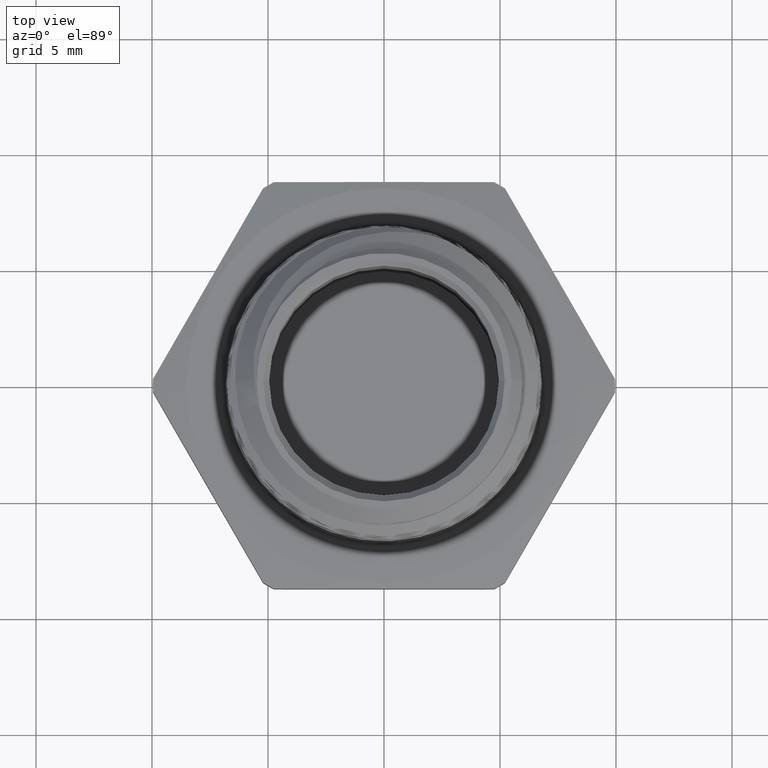
[diagram: clean part render]
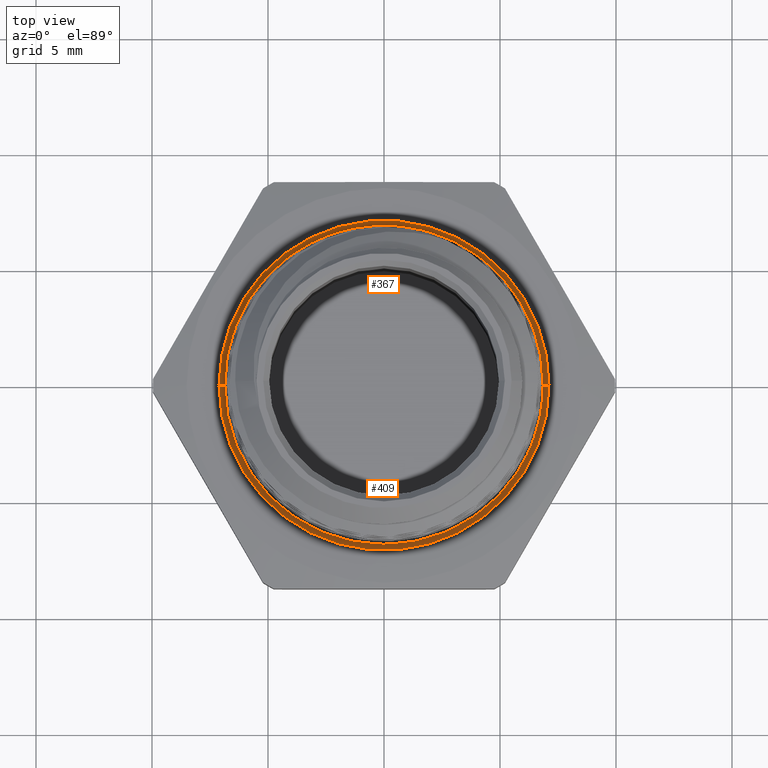
[diagram: same view with one multi-face feature highlighted, each face labeled with its STEP entity id]
A machine part, top view. The highlighted faces form ONE feature: a constant-radius fillet chain: 2 tangent blend faces with common blend radius 0.254 mm. The faces share edges in the B-rep.
Their STEP definitions:
[1] entity #367 (Torus):
#367 = ADVANCED_FACE ( 'NONE', ( #1007 ), #1006, .F. ) ;
#486 = EDGE_CURVE ( 'NONE', #879, #878, #1106, .T. ) ;
#546 = EDGE_CURVE ( 'NONE', #873, #879, #1185, .T. ) ;
#548 = EDGE_CURVE ( 'NONE', #876, #878, #1187, .T. ) ;
#596 = EDGE_CURVE ( 'NONE', #876, #873, #1229, .T. ) ;
#622 = AXIS2_PLACEMENT_3D ( 'NONE', #5113, #5111, #5115 ) ;
#680 = AXIS2_PLACEMENT_3D ( 'NONE', #3029, #3030, #3031 ) ;
#706 = AXIS2_PLACEMENT_3D ( 'NONE', #3727, #3728, #3729 ) ;
#718 = EDGE_LOOP ( 'NONE', ( #4720, #4718, #4725, #4728 ) ) ;
#873 = VERTEX_POINT ( 'NONE', #4147 ) ;
#876 = VERTEX_POINT ( 'NONE', #4150 ) ;
#878 = VERTEX_POINT ( 'NONE', #4152 ) ;
#879 = VERTEX_POINT ( 'NONE', #4153 ) ;
#1006 = TOROIDAL_SURFACE ( 'NONE', #622, 0.2800000000000000300, 0.01000000000000000000 ) ;
#1007 = FACE_OUTER_BOUND ( 'NONE', #718, .T. ) ;
#1106 = CIRCLE ( 'NONE', #680, 0.2800000000000000300 ) ;
#1185 = CIRCLE ( 'NONE', #706, 0.009999999999999995000 ) ;
#1187 = CIRCLE ( 'NONE', #3862, 0.009999999999999995000 ) ;
#1229 = CIRCLE ( 'NONE', #3883, 0.2700000000000000200 ) ;
#3029 = CARTESIAN_POINT ( 'NONE',  ( 0.0000000000000000000, 0.0000000000000000000, 0.1100000000000000000 ) ) ;
#3030 = DIRECTION ( 'NONE',  ( 0.0000000000000000000, -0.0000000000000000000, -1.000000000000000000 ) ) ;
#3031 = DIRECTION ( 'NONE',  ( 1.000000000000000000, 0.0000000000000000000, 0.0000000000000000000 ) ) ;
#3727 = CARTESIAN_POINT ( 'NONE',  ( -0.2800000000000000300, 3.429011037612588800E-017, 0.1200000000000000200 ) ) ;
#3728 = DIRECTION ( 'NONE',  ( 1.224646799147353200E-016, 1.000000000000000000, 0.0000000000000000000 ) ) ;
#3729 = DIRECTION ( 'NONE',  ( -1.000000000000000000, 1.224646799147351000E-016, 0.0000000000000000000 ) ) ;
#3733 = CARTESIAN_POINT ( 'NONE',  ( 0.2800000000000000300, 0.0000000000000000000, 0.1200000000000000200 ) ) ;
#3734 = DIRECTION ( 'NONE',  ( 0.0000000000000000000, -1.000000000000000000, 0.0000000000000000000 ) ) ;
#3735 = DIRECTION ( 'NONE',  ( 0.0000000000000000000, 0.0000000000000000000, -1.000000000000000000 ) ) ;
#3862 = AXIS2_PLACEMENT_3D ( 'NONE', #3733, #3734, #3735 ) ;
#3883 = AXIS2_PLACEMENT_3D ( 'NONE', #4092, #4093, #4094 ) ;
#4092 = CARTESIAN_POINT ( 'NONE',  ( 0.0000000000000000000, 0.0000000000000000000, 0.1200000000000000200 ) ) ;
#4093 = DIRECTION ( 'NONE',  ( -0.0000000000000000000, 0.0000000000000000000, 1.000000000000000000 ) ) ;
#4094 = DIRECTION ( 'NONE',  ( 1.000000000000000000, 0.0000000000000000000, 0.0000000000000000000 ) ) ;
#4147 = CARTESIAN_POINT ( 'NONE',  ( -0.2700000000000000200, 0.0000000000000000000, 0.1200000000000000200 ) ) ;
#4150 = CARTESIAN_POINT ( 'NONE',  ( 0.2700000000000000200, 3.306546357697853700E-017, 0.1200000000000000200 ) ) ;
#4152 = CARTESIAN_POINT ( 'NONE',  ( 0.2800000000000000300, 0.0000000000000000000, 0.1100000000000000300 ) ) ;
#4153 = CARTESIAN_POINT ( 'NONE',  ( -0.2800000000000000300, 3.429011037612588800E-017, 0.1100000000000000300 ) ) ;
#4718 = ORIENTED_EDGE ( 'NONE', *, *, #596, .F. ) ;
#4720 = ORIENTED_EDGE ( 'NONE', *, *, #546, .F. ) ;
#4725 = ORIENTED_EDGE ( 'NONE', *, *, #548, .T. ) ;
#4728 = ORIENTED_EDGE ( 'NONE', *, *, #486, .F. ) ;
#5111 = DIRECTION ( 'NONE',  ( -0.0000000000000000000, 0.0000000000000000000, 1.000000000000000000 ) ) ;
#5113 = CARTESIAN_POINT ( 'NONE',  ( 0.0000000000000000000, 0.0000000000000000000, 0.1200000000000000200 ) ) ;
#5115 = DIRECTION ( 'NONE',  ( 1.000000000000000000, 0.0000000000000000000, 0.0000000000000000000 ) ) ;
[2] entity #409 (Torus):
#37 = EDGE_LOOP ( 'NONE', ( #752, #736, #753, #754 ) ) ;
#409 = ADVANCED_FACE ( 'NONE', ( #1092 ), #1095, .F. ) ;
#545 = EDGE_CURVE ( 'NONE', #873, #876, #1182, .T. ) ;
#546 = EDGE_CURVE ( 'NONE', #873, #879, #1185, .T. ) ;
#547 = EDGE_CURVE ( 'NONE', #878, #879, #1183, .T. ) ;
#548 = EDGE_CURVE ( 'NONE', #876, #878, #1187, .T. ) ;
#674 = AXIS2_PLACEMENT_3D ( 'NONE', #2739, #2738, #2741 ) ;
#705 = AXIS2_PLACEMENT_3D ( 'NONE', #3724, #3725, #3726 ) ;
#706 = AXIS2_PLACEMENT_3D ( 'NONE', #3727, #3728, #3729 ) ;
#736 = ORIENTED_EDGE ( 'NONE', *, *, #546, .T. ) ;
#752 = ORIENTED_EDGE ( 'NONE', *, *, #545, .F. ) ;
#753 = ORIENTED_EDGE ( 'NONE', *, *, #547, .F. ) ;
#754 = ORIENTED_EDGE ( 'NONE', *, *, #548, .F. ) ;
#873 = VERTEX_POINT ( 'NONE', #4147 ) ;
#876 = VERTEX_POINT ( 'NONE', #4150 ) ;
#878 = VERTEX_POINT ( 'NONE', #4152 ) ;
#879 = VERTEX_POINT ( 'NONE', #4153 ) ;
#1092 = FACE_OUTER_BOUND ( 'NONE', #37, .T. ) ;
#1095 = TOROIDAL_SURFACE ( 'NONE', #674, 0.2800000000000000300, 0.01000000000000000000 ) ;
#1182 = CIRCLE ( 'NONE', #705, 0.2700000000000000200 ) ;
#1183 = CIRCLE ( 'NONE', #3861, 0.2800000000000000300 ) ;
#1185 = CIRCLE ( 'NONE', #706, 0.009999999999999995000 ) ;
#1187 = CIRCLE ( 'NONE', #3862, 0.009999999999999995000 ) ;
#2738 = DIRECTION ( 'NONE',  ( -0.0000000000000000000, 0.0000000000000000000, 1.000000000000000000 ) ) ;
#2739 = CARTESIAN_POINT ( 'NONE',  ( 0.0000000000000000000, 0.0000000000000000000, 0.1200000000000000200 ) ) ;
#2741 = DIRECTION ( 'NONE',  ( 1.000000000000000000, 0.0000000000000000000, 0.0000000000000000000 ) ) ;
#3724 = CARTESIAN_POINT ( 'NONE',  ( 0.0000000000000000000, 0.0000000000000000000, 0.1200000000000000200 ) ) ;
#3725 = DIRECTION ( 'NONE',  ( -0.0000000000000000000, 0.0000000000000000000, 1.000000000000000000 ) ) ;
#3726 = DIRECTION ( 'NONE',  ( 1.000000000000000000, 0.0000000000000000000, 0.0000000000000000000 ) ) ;
#3727 = CARTESIAN_POINT ( 'NONE',  ( -0.2800000000000000300, 3.429011037612588800E-017, 0.1200000000000000200 ) ) ;
#3728 = DIRECTION ( 'NONE',  ( 1.224646799147353200E-016, 1.000000000000000000, 0.0000000000000000000 ) ) ;
#3729 = DIRECTION ( 'NONE',  ( -1.000000000000000000, 1.224646799147351000E-016, 0.0000000000000000000 ) ) ;
#3730 = CARTESIAN_POINT ( 'NONE',  ( 0.0000000000000000000, 0.0000000000000000000, 0.1100000000000000000 ) ) ;
#3731 = DIRECTION ( 'NONE',  ( 0.0000000000000000000, -0.0000000000000000000, -1.000000000000000000 ) ) ;
#3732 = DIRECTION ( 'NONE',  ( 1.000000000000000000, 0.0000000000000000000, 0.0000000000000000000 ) ) ;
#3733 = CARTESIAN_POINT ( 'NONE',  ( 0.2800000000000000300, 0.0000000000000000000, 0.1200000000000000200 ) ) ;
#3734 = DIRECTION ( 'NONE',  ( 0.0000000000000000000, -1.000000000000000000, 0.0000000000000000000 ) ) ;
#3735 = DIRECTION ( 'NONE',  ( 0.0000000000000000000, 0.0000000000000000000, -1.000000000000000000 ) ) ;
#3861 = AXIS2_PLACEMENT_3D ( 'NONE', #3730, #3731, #3732 ) ;
#3862 = AXIS2_PLACEMENT_3D ( 'NONE', #3733, #3734, #3735 ) ;
#4147 = CARTESIAN_POINT ( 'NONE',  ( -0.2700000000000000200, 0.0000000000000000000, 0.1200000000000000200 ) ) ;
#4150 = CARTESIAN_POINT ( 'NONE',  ( 0.2700000000000000200, 3.306546357697853700E-017, 0.1200000000000000200 ) ) ;
#4152 = CARTESIAN_POINT ( 'NONE',  ( 0.2800000000000000300, 0.0000000000000000000, 0.1100000000000000300 ) ) ;
#4153 = CARTESIAN_POINT ( 'NONE',  ( -0.2800000000000000300, 3.429011037612588800E-017, 0.1100000000000000300 ) ) ;